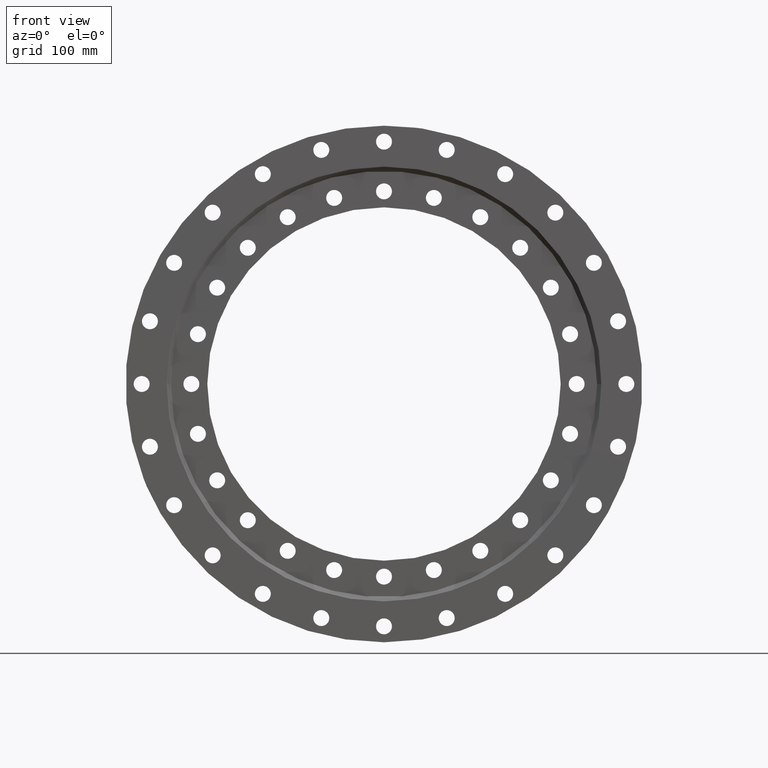
[diagram: clean part render]
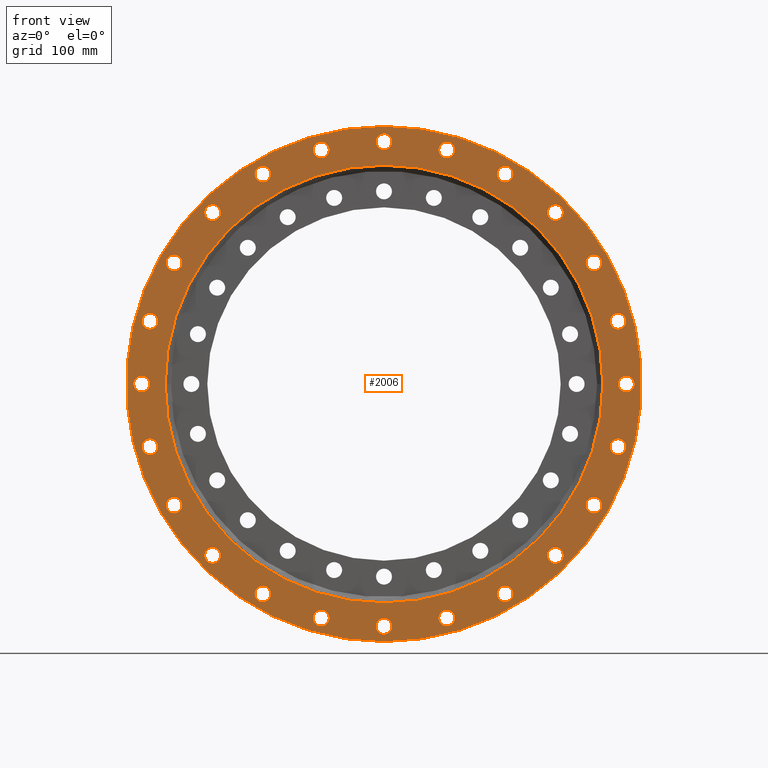
[diagram: same view with one face highlighted and labeled with its STEP entity id]
A machine part, front view. The second image highlights one B-rep face of the part: STEP entity #2006.
In plain terms, the highlighted planar face has unit normal (-0, 1, 0).
Its self-contained STEP definition (entity closure, byte-faithful):
#3 = AXIS2_PLACEMENT_3D ( 'NONE', #2013, #2030, #2047 ) ;
#12 = VERTEX_POINT ( 'NONE', #820 ) ;
#15 = CARTESIAN_POINT ( 'NONE',  ( -86.44556106424455800, -36.00000000000002800, -311.6192259805480900 ) ) ;
#21 = CIRCLE ( 'NONE', #1139, 355.0000000000000000 ) ;
#23 = EDGE_LOOP ( 'NONE', ( #2424, #4760 ) ) ;
#46 = ORIENTED_EDGE ( 'NONE', *, *, #116, .T. ) ;
#58 = CARTESIAN_POINT ( 'NONE',  ( 289.2524848640016400, -36.00000000000002800, -156.0000000000015600 ) ) ;
#84 = FACE_BOUND ( 'NONE', #23, .T. ) ;
#116 = EDGE_CURVE ( 'NONE', #5216, #2707, #4430, .T. ) ;
#119 = ORIENTED_EDGE ( 'NONE', *, *, #4009, .T. ) ;
#134 = CARTESIAN_POINT ( 'NONE',  ( 166.9999999999981800, -36.00000000000002800, -289.2524848640036300 ) ) ;
#144 = CIRCLE ( 'NONE', #1614, 11.00000000000000900 ) ;
#148 = AXIS2_PLACEMENT_3D ( 'NONE', #2527, #2550, #2562 ) ;
#150 = DIRECTION ( 'NONE',  ( 0.0000000000000000000, 1.000000000000000000, 0.0000000000000000000 ) ) ;
#156 = EDGE_CURVE ( 'NONE', #430, #5202, #5718, .T. ) ;
#167 = DIRECTION ( 'NONE',  ( 0.5000000000000066600, 0.0000000000000000000, -0.8660254037844347100 ) ) ;
#171 = AXIS2_PLACEMENT_3D ( 'NONE', #852, #3179, #3308 ) ;
#180 = VERTEX_POINT ( 'NONE', #2498 ) ;
#197 = VERTEX_POINT ( 'NONE', #5814 ) ;
#209 = DIRECTION ( 'NONE',  ( 0.8660254037844439300, 0.0000000000000000000, -0.4999999999999909500 ) ) ;
#219 = CARTESIAN_POINT ( 'NONE',  ( -289.2524848640004500, -36.00000000000002800, 167.0000000000035500 ) ) ;
#220 = CIRCLE ( 'NONE', #1414, 11.00000000000000900 ) ;
#237 = DIRECTION ( 'NONE',  ( 0.0000000000000000000, 1.000000000000000000, 0.0000000000000000000 ) ) ;
#238 = EDGE_LOOP ( 'NONE', ( #4052, #3748 ) ) ;
#252 = EDGE_CURVE ( 'NONE', #2319, #2987, #3437, .T. ) ;
#256 = DIRECTION ( 'NONE',  ( -0.8660254037844393700, 0.0000000000000000000, 0.4999999999999987800 ) ) ;
#262 = EDGE_CURVE ( 'NONE', #5720, #1990, #3318, .T. ) ;
#264 = CARTESIAN_POINT ( 'NONE',  ( 166.9999999999981800, -36.00000000000002800, -300.2524848640036300 ) ) ;
#298 = DIRECTION ( 'NONE',  ( 0.0000000000000000000, 1.000000000000000000, 0.0000000000000000000 ) ) ;
#331 = CARTESIAN_POINT ( 'NONE',  ( 86.44556106424232700, -36.00000000000002800, 311.6192259805487200 ) ) ;
#343 = CIRCLE ( 'NONE', #1247, 10.99999999999998000 ) ;
#360 = FACE_BOUND ( 'NONE', #518, .T. ) ;
#361 = CARTESIAN_POINT ( 'NONE',  ( 322.6192259805491700, -36.00000000000002800, 97.44556106424082000 ) ) ;
#375 = EDGE_LOOP ( 'NONE', ( #3237, #46 ) ) ;
#376 = FACE_BOUND ( 'NONE', #4136, .T. ) ;
#378 = DIRECTION ( 'NONE',  ( -0.2588190451025145200, 0.0000000000000000000, -0.9659258262890698700 ) ) ;
#383 = DIRECTION ( 'NONE',  ( 0.0000000000000000000, 1.000000000000000000, 0.0000000000000000000 ) ) ;
#400 = DIRECTION ( 'NONE',  ( 0.0000000000000000000, 0.0000000000000000000, 1.000000000000000000 ) ) ;
#404 = CARTESIAN_POINT ( 'NONE',  ( 86.44556106423968300, -36.00000000000002800, -322.6192259805494000 ) ) ;
#422 = AXIS2_PLACEMENT_3D ( 'NONE', #2269, #298, #1434 ) ;
#423 = VERTEX_POINT ( 'NONE', #3463 ) ;
#428 = CARTESIAN_POINT ( 'NONE',  ( -167.0000000000025300, -36.00000000000002800, -278.2524848640010800 ) ) ;
#429 = FACE_BOUND ( 'NONE', #5042, .T. ) ;
#430 = VERTEX_POINT ( 'NONE', #5399 ) ;
#433 = AXIS2_PLACEMENT_3D ( 'NONE', #616, #633, #656 ) ;
#456 = VERTEX_POINT ( 'NONE', #4078 ) ;
#459 = FACE_BOUND ( 'NONE', #1362, .T. ) ;
#472 = AXIS2_PLACEMENT_3D ( 'NONE', #219, #237, #256 ) ;
#484 = VERTEX_POINT ( 'NONE', #3235 ) ;
#489 = DIRECTION ( 'NONE',  ( 0.9659258262890655400, 0.0000000000000000000, 0.2588190451025311200 ) ) ;
#498 = EDGE_LOOP ( 'NONE', ( #2119, #2377 ) ) ;
#506 = AXIS2_PLACEMENT_3D ( 'NONE', #134, #150, #167 ) ;
#511 = ORIENTED_EDGE ( 'NONE', *, *, #262, .T. ) ;
#518 = EDGE_LOOP ( 'NONE', ( #3384, #3825 ) ) ;
#534 = FACE_BOUND ( 'NONE', #4867, .T. ) ;
#550 = VERTEX_POINT ( 'NONE', #3514 ) ;
#558 = VERTEX_POINT ( 'NONE', #2254 ) ;
#566 = CIRCLE ( 'NONE', #1294, 10.99999999999999300 ) ;
#572 = CARTESIAN_POINT ( 'NONE',  ( -236.1736649163090900, -36.00000000000002800, -247.1736649163046600 ) ) ;
#573 = DIRECTION ( 'NONE',  ( 0.0000000000000000000, 0.0000000000000000000, 1.000000000000000000 ) ) ;
#582 = DIRECTION ( 'NONE',  ( 0.0000000000000000000, 1.000000000000000000, 0.0000000000000000000 ) ) ;
#587 = EDGE_CURVE ( 'NONE', #5612, #1844, #5318, .T. ) ;
#614 = DIRECTION ( 'NONE',  ( 0.2588190451025276200, 0.0000000000000000000, -0.9659258262890664200 ) ) ;
#616 = CARTESIAN_POINT ( 'NONE',  ( -236.1736649163090900, -36.00000000000002800, -236.1736649163046900 ) ) ;
#630 = FACE_BOUND ( 'NONE', #5164, .T. ) ;
#633 = DIRECTION ( 'NONE',  ( 0.0000000000000000000, 1.000000000000000000, 0.0000000000000000000 ) ) ;
#649 = CARTESIAN_POINT ( 'NONE',  ( -289.2524848640004500, -36.00000000000002800, 167.0000000000035500 ) ) ;
#656 = DIRECTION ( 'NONE',  ( -0.7071067811865438000, 0.0000000000000000000, -0.7071067811865513500 ) ) ;
#662 = CIRCLE ( 'NONE', #2791, 11.00000000000001100 ) ;
#664 = DIRECTION ( 'NONE',  ( -0.0000000000000000000, 1.000000000000000000, -0.0000000000000000000 ) ) ;
#665 = VERTEX_POINT ( 'NONE', #2187 ) ;
#682 = CARTESIAN_POINT ( 'NONE',  ( 0.0000000000000000000, -36.00000000000002100, 0.0000000000000000000 ) ) ;
#686 = EDGE_LOOP ( 'NONE', ( #4099, #4105 ) ) ;
#774 = AXIS2_PLACEMENT_3D ( 'NONE', #2868, #2574, #2350 ) ;
#779 = EDGE_CURVE ( 'NONE', #4275, #1436, #4850, .T. ) ;
#785 = EDGE_CURVE ( 'NONE', #2707, #5216, #4763, .T. ) ;
#790 = VERTEX_POINT ( 'NONE', #1659 ) ;
#793 = DIRECTION ( 'NONE',  ( 6.982962677686258800E-015, 0.0000000000000000000, -1.000000000000000000 ) ) ;
#800 = CIRCLE ( 'NONE', #4824, 10.99999999999998000 ) ;
#815 = VERTEX_POINT ( 'NONE', #58 ) ;
#820 = CARTESIAN_POINT ( 'NONE',  ( -236.1736649163090900, -36.00000000000002800, -225.1736649163046900 ) ) ;
#826 = EDGE_LOOP ( 'NONE', ( #3183, #856 ) ) ;
#827 = DIRECTION ( 'NONE',  ( 0.0000000000000000000, 1.000000000000000000, 0.0000000000000000000 ) ) ;
#852 = CARTESIAN_POINT ( 'NONE',  ( -322.6192259805478100, -36.00000000000002800, 86.44556106424569500 ) ) ;
#856 = ORIENTED_EDGE ( 'NONE', *, *, #5449, .T. ) ;
#864 = CARTESIAN_POINT ( 'NONE',  ( -2.524916198387845900E-012, -36.00000000000002800, -334.0000000000000000 ) ) ;
#886 = CARTESIAN_POINT ( 'NONE',  ( -322.6192259805498000, -36.00000000000002800, -75.44556106423857500 ) ) ;
#897 = CIRCLE ( 'NONE', #3, 10.99999999999998000 ) ;
#901 = CARTESIAN_POINT ( 'NONE',  ( 289.2524848640030100, -36.00000000000002800, 166.9999999999991800 ) ) ;
#904 = AXIS2_PLACEMENT_3D ( 'NONE', #5311, #4855, #3256 ) ;
#921 = DIRECTION ( 'NONE',  ( 0.0000000000000000000, 1.000000000000000000, 0.0000000000000000000 ) ) ;
#952 = VERTEX_POINT ( 'NONE', #4466 ) ;
#970 = VERTEX_POINT ( 'NONE', #4947 ) ;
#971 = CIRCLE ( 'NONE', #4743, 11.00000000000001100 ) ;
#1054 = ORIENTED_EDGE ( 'NONE', *, *, #1971, .T. ) ;
#1055 = DIRECTION ( 'NONE',  ( 0.8660254037844326000, 0.0000000000000000000, 0.5000000000000105500 ) ) ;
#1062 = CIRCLE ( 'NONE', #2275, 11.00000000000000900 ) ;
#1069 = DIRECTION ( 'NONE',  ( 0.0000000000000000000, 1.000000000000000000, 0.0000000000000000000 ) ) ;
#1074 = ORIENTED_EDGE ( 'NONE', *, *, #2236, .T. ) ;
#1084 = EDGE_CURVE ( 'NONE', #3074, #5077, #4227, .T. ) ;
#1104 = AXIS2_PLACEMENT_3D ( 'NONE', #2285, #2313, #2341 ) ;
#1124 = VERTEX_POINT ( 'NONE', #2693 ) ;
#1139 = AXIS2_PLACEMENT_3D ( 'NONE', #1763, #1745, #1873 ) ;
#1140 = DIRECTION ( 'NONE',  ( 0.0000000000000000000, 1.000000000000000000, 0.0000000000000000000 ) ) ;
#1157 = CARTESIAN_POINT ( 'NONE',  ( 0.0000000000000000000, -36.00000000000002100, 0.0000000000000000000 ) ) ;
#1243 = EDGE_CURVE ( 'NONE', #2926, #5794, #3505, .T. ) ;
#1247 = AXIS2_PLACEMENT_3D ( 'NONE', #4643, #4624, #4611 ) ;
#1270 = CIRCLE ( 'NONE', #1879, 10.99999999999997200 ) ;
#1294 = AXIS2_PLACEMENT_3D ( 'NONE', #4915, #2683, #2667 ) ;
#1310 = CIRCLE ( 'NONE', #1762, 10.99999999999998600 ) ;
#1353 = DIRECTION ( 'NONE',  ( 0.7071067811865386900, 0.0000000000000000000, 0.7071067811865563400 ) ) ;
#1362 = EDGE_LOOP ( 'NONE', ( #3732, #3328 ) ) ;
#1376 = FACE_BOUND ( 'NONE', #4436, .T. ) ;
#1395 = CARTESIAN_POINT ( 'NONE',  ( 236.1736649163074400, -36.00000000000002800, 236.1736649163063100 ) ) ;
#1402 = CARTESIAN_POINT ( 'NONE',  ( -289.2524848640042600, -36.00000000000002800, -155.9999999999971600 ) ) ;
#1407 = CIRCLE ( 'NONE', #4268, 11.00000000000000500 ) ;
#1412 = DIRECTION ( 'NONE',  ( 0.0000000000000000000, 1.000000000000000000, 0.0000000000000000000 ) ) ;
#1414 = AXIS2_PLACEMENT_3D ( 'NONE', #5051, #4992, #4962 ) ;
#1424 = CARTESIAN_POINT ( 'NONE',  ( 167.0000000000005100, -36.00000000000002800, 278.2524848640022100 ) ) ;
#1433 = CARTESIAN_POINT ( 'NONE',  ( -236.1736649163038600, -36.00000000000002800, 247.1736649163099500 ) ) ;
#1434 = DIRECTION ( 'NONE',  ( -0.5000000000000007800, 0.0000000000000000000, 0.8660254037844382600 ) ) ;
#1436 = VERTEX_POINT ( 'NONE', #15 ) ;
#1468 = CARTESIAN_POINT ( 'NONE',  ( 236.1736649163074400, -36.00000000000002800, 225.1736649163063400 ) ) ;
#1473 = CIRCLE ( 'NONE', #1825, 10.99999999999997200 ) ;
#1508 = CIRCLE ( 'NONE', #2058, 10.99999999999998000 ) ;
#1515 = CIRCLE ( 'NONE', #5310, 11.00000000000000000 ) ;
#1520 = AXIS2_PLACEMENT_3D ( 'NONE', #3393, #3413, #3428 ) ;
#1539 = CARTESIAN_POINT ( 'NONE',  ( -2.524916198387845900E-012, -36.00000000000002800, -334.0000000000000000 ) ) ;
#1580 = CARTESIAN_POINT ( 'NONE',  ( 166.9999999999981800, -36.00000000000002800, -278.2524848640036300 ) ) ;
#1594 = FACE_OUTER_BOUND ( 'NONE', #1809, .T. ) ;
#1598 = DIRECTION ( 'NONE',  ( 0.0000000000000000000, 1.000000000000000000, 0.0000000000000000000 ) ) ;
#1599 = AXIS2_PLACEMENT_3D ( 'NONE', #3757, #3774, #3792 ) ;
#1606 = DIRECTION ( 'NONE',  ( 0.0000000000000000000, 0.0000000000000000000, 1.000000000000000000 ) ) ;
#1609 = DIRECTION ( 'NONE',  ( -0.2588190451025216800, 0.0000000000000000000, 0.9659258262890679800 ) ) ;
#1611 = EDGE_CURVE ( 'NONE', #484, #2503, #2773, .T. ) ;
#1614 = AXIS2_PLACEMENT_3D ( 'NONE', #3554, #3544, #3525 ) ;
#1617 = EDGE_LOOP ( 'NONE', ( #4557, #4030 ) ) ;
#1631 = CARTESIAN_POINT ( 'NONE',  ( -86.44556106424455800, -36.00000000000002800, -333.6192259805480900 ) ) ;
#1635 = DIRECTION ( 'NONE',  ( 0.0000000000000000000, 1.000000000000000000, 0.0000000000000000000 ) ) ;
#1659 = CARTESIAN_POINT ( 'NONE',  ( 289.2524848640030100, -36.00000000000002800, 155.9999999999992000 ) ) ;
#1665 = DIRECTION ( 'NONE',  ( 0.0000000000000000000, 1.000000000000000000, 0.0000000000000000000 ) ) ;
#1667 = CIRCLE ( 'NONE', #5353, 11.00000000000001100 ) ;
#1673 = EDGE_CURVE ( 'NONE', #5380, #952, #2095, .T. ) ;
#1680 = EDGE_CURVE ( 'NONE', #1844, #5612, #1891, .T. ) ;
#1685 = EDGE_LOOP ( 'NONE', ( #3439, #4724 ) ) ;
#1717 = CARTESIAN_POINT ( 'NONE',  ( -86.44556106424455800, -36.00000000000002800, -322.6192259805480900 ) ) ;
#1743 = EDGE_CURVE ( 'NONE', #1817, #5282, #1473, .T. ) ;
#1745 = DIRECTION ( 'NONE',  ( 0.0000000000000000000, -1.000000000000000000, 0.0000000000000000000 ) ) ;
#1749 = DIRECTION ( 'NONE',  ( -0.0000000000000000000, 1.000000000000000000, -0.0000000000000000000 ) ) ;
#1752 = EDGE_CURVE ( 'NONE', #4164, #815, #1310, .T. ) ;
#1762 = AXIS2_PLACEMENT_3D ( 'NONE', #1958, #1923, #209 ) ;
#1763 = CARTESIAN_POINT ( 'NONE',  ( 0.0000000000000000000, -36.00000000000002100, -1.337991223932613900E-015 ) ) ;
#1764 = DIRECTION ( 'NONE',  ( -0.7071067811865487900, 0.0000000000000000000, 0.7071067811865462400 ) ) ;
#1788 = CIRCLE ( 'NONE', #1104, 11.00000000000000000 ) ;
#1791 = DIRECTION ( 'NONE',  ( 0.4999999999999891200, 0.0000000000000000000, 0.8660254037844450400 ) ) ;
#1808 = VERTEX_POINT ( 'NONE', #1402 ) ;
#1809 = EDGE_LOOP ( 'NONE', ( #4293, #5221 ) ) ;
#1814 = CARTESIAN_POINT ( 'NONE',  ( 322.6192259805491700, -36.00000000000002800, 75.44556106424083500 ) ) ;
#1817 = VERTEX_POINT ( 'NONE', #1424 ) ;
#1825 = AXIS2_PLACEMENT_3D ( 'NONE', #2277, #2250, #2228 ) ;
#1831 = VERTEX_POINT ( 'NONE', #331 ) ;
#1844 = VERTEX_POINT ( 'NONE', #1468 ) ;
#1846 = EDGE_CURVE ( 'NONE', #5840, #1808, #144, .T. ) ;
#1859 = EDGE_CURVE ( 'NONE', #2689, #423, #21, .T. ) ;
#1872 = DIRECTION ( 'NONE',  ( -0.8660254037844393700, 0.0000000000000000000, 0.4999999999999987800 ) ) ;
#1873 = DIRECTION ( 'NONE',  ( 0.0000000000000000000, 0.0000000000000000000, 1.000000000000000000 ) ) ;
#1874 = VERTEX_POINT ( 'NONE', #1814 ) ;
#1879 = AXIS2_PLACEMENT_3D ( 'NONE', #4653, #4500, #1791 ) ;
#1891 = CIRCLE ( 'NONE', #1903, 10.99999999999998000 ) ;
#1903 = AXIS2_PLACEMENT_3D ( 'NONE', #3676, #4794, #2843 ) ;
#1923 = DIRECTION ( 'NONE',  ( 0.0000000000000000000, 1.000000000000000000, 0.0000000000000000000 ) ) ;
#1934 = DIRECTION ( 'NONE',  ( 1.000000000000000000, 0.0000000000000000000, 1.047444401652938900E-014 ) ) ;
#1958 = CARTESIAN_POINT ( 'NONE',  ( 289.2524848640016400, -36.00000000000002800, -167.0000000000015300 ) ) ;
#1959 = EDGE_CURVE ( 'NONE', #558, #3807, #343, .T. ) ;
#1963 = DIRECTION ( 'NONE',  ( 0.2588190451025276200, 0.0000000000000000000, -0.9659258262890664200 ) ) ;
#1969 = CARTESIAN_POINT ( 'NONE',  ( -322.6192259805478100, -36.00000000000002800, 86.44556106424569500 ) ) ;
#1971 = EDGE_CURVE ( 'NONE', #1874, #3365, #220, .T. ) ;
#1973 = EDGE_CURVE ( 'NONE', #1831, #1124, #566, .T. ) ;
#1986 = CARTESIAN_POINT ( 'NONE',  ( 86.44556106423968300, -36.00000000000002800, -322.6192259805494000 ) ) ;
#1990 = VERTEX_POINT ( 'NONE', #1580 ) ;
#1991 = DIRECTION ( 'NONE',  ( 0.0000000000000000000, 1.000000000000000000, 0.0000000000000000000 ) ) ;
#2006 = ADVANCED_FACE ( 'NONE', ( #84, #360, #429, #4426, #630, #5031, #5255, #1376, #5634, #5571, #2203, #4400, #4531, #4520, #4378, #4477, #3663, #376, #2214, #3519, #459, #2189, #534, #5527, #5686, #1594 ), #5594, .F. ) ;
#2013 = CARTESIAN_POINT ( 'NONE',  ( 236.1736649163055100, -36.00000000000002800, -236.1736649163082700 ) ) ;
#2024 = DIRECTION ( 'NONE',  ( -0.9659258262890689800, 0.0000000000000000000, 0.2588190451025181900 ) ) ;
#2028 = DIRECTION ( 'NONE',  ( 0.0000000000000000000, 1.000000000000000000, 0.0000000000000000000 ) ) ;
#2030 = DIRECTION ( 'NONE',  ( 0.0000000000000000000, 1.000000000000000000, 0.0000000000000000000 ) ) ;
#2047 = DIRECTION ( 'NONE',  ( 0.7071067811865537900, 0.0000000000000000000, -0.7071067811865412400 ) ) ;
#2050 = DIRECTION ( 'NONE',  ( 0.0000000000000000000, 1.000000000000000000, 0.0000000000000000000 ) ) ;
#2058 = AXIS2_PLACEMENT_3D ( 'NONE', #4674, #5640, #5577 ) ;
#2065 = CARTESIAN_POINT ( 'NONE',  ( -322.6192259805498000, -36.00000000000002800, -86.44556106423857500 ) ) ;
#2093 = AXIS2_PLACEMENT_3D ( 'NONE', #4161, #5448, #5346 ) ;
#2095 = CIRCLE ( 'NONE', #904, 11.00000000000001100 ) ;
#2112 = DIRECTION ( 'NONE',  ( -0.5000000000000007800, 0.0000000000000000000, 0.8660254037844382600 ) ) ;
#2119 = ORIENTED_EDGE ( 'NONE', *, *, #3863, .T. ) ;
#2121 = VERTEX_POINT ( 'NONE', #5390 ) ;
#2128 = CARTESIAN_POINT ( 'NONE',  ( 322.6192259805484400, -36.00000000000002800, -86.44556106424343500 ) ) ;
#2136 = DIRECTION ( 'NONE',  ( 0.0000000000000000000, 1.000000000000000000, 0.0000000000000000000 ) ) ;
#2139 = DIRECTION ( 'NONE',  ( -0.7071067811865487900, 0.0000000000000000000, 0.7071067811865462400 ) ) ;
#2158 = EDGE_CURVE ( 'NONE', #970, #197, #4588, .T. ) ;
#2172 = DIRECTION ( 'NONE',  ( 0.0000000000000000000, 1.000000000000000000, 0.0000000000000000000 ) ) ;
#2176 = EDGE_CURVE ( 'NONE', #3365, #1874, #1062, .T. ) ;
#2183 = CIRCLE ( 'NONE', #472, 10.99999999999998000 ) ;
#2187 = CARTESIAN_POINT ( 'NONE',  ( 236.1736649163055100, -36.00000000000002800, -247.1736649163082400 ) ) ;
#2189 = FACE_BOUND ( 'NONE', #5264, .T. ) ;
#2203 = FACE_BOUND ( 'NONE', #1617, .T. ) ;
#2210 = VERTEX_POINT ( 'NONE', #5323 ) ;
#2214 = FACE_BOUND ( 'NONE', #498, .T. ) ;
#2228 = DIRECTION ( 'NONE',  ( 0.4999999999999891200, 0.0000000000000000000, 0.8660254037844450400 ) ) ;
#2236 = EDGE_CURVE ( 'NONE', #952, #5380, #4334, .T. ) ;
#2250 = DIRECTION ( 'NONE',  ( 0.0000000000000000000, 1.000000000000000000, 0.0000000000000000000 ) ) ;
#2254 = CARTESIAN_POINT ( 'NONE',  ( -86.44556106423743800, -36.00000000000002800, 311.6192259805500300 ) ) ;
#2269 = CARTESIAN_POINT ( 'NONE',  ( -166.9999999999961300, -36.00000000000002800, 289.2524848640047700 ) ) ;
#2275 = AXIS2_PLACEMENT_3D ( 'NONE', #4090, #3903, #489 ) ;
#2277 = CARTESIAN_POINT ( 'NONE',  ( 167.0000000000005100, -36.00000000000002800, 289.2524848640022100 ) ) ;
#2285 = CARTESIAN_POINT ( 'NONE',  ( 289.2524848640030100, -36.00000000000002800, 166.9999999999991800 ) ) ;
#2301 = VERTEX_POINT ( 'NONE', #2821 ) ;
#2313 = DIRECTION ( 'NONE',  ( 0.0000000000000000000, 1.000000000000000000, 0.0000000000000000000 ) ) ;
#2315 = EDGE_LOOP ( 'NONE', ( #3020, #1074 ) ) ;
#2319 = VERTEX_POINT ( 'NONE', #2783 ) ;
#2324 = AXIS2_PLACEMENT_3D ( 'NONE', #4554, #4518, #4124 ) ;
#2327 = DIRECTION ( 'NONE',  ( 0.9659258262890708700, 0.0000000000000000000, -0.2588190451025110300 ) ) ;
#2335 = DIRECTION ( 'NONE',  ( 6.982962677686258800E-015, 0.0000000000000000000, -1.000000000000000000 ) ) ;
#2341 = DIRECTION ( 'NONE',  ( 0.8660254037844326000, 0.0000000000000000000, 0.5000000000000105500 ) ) ;
#2350 = DIRECTION ( 'NONE',  ( -1.000000000000000000, 0.0000000000000000000, -3.491481338843147200E-015 ) ) ;
#2358 = DIRECTION ( 'NONE',  ( 0.0000000000000000000, 1.000000000000000000, 0.0000000000000000000 ) ) ;
#2377 = ORIENTED_EDGE ( 'NONE', *, *, #5704, .T. ) ;
#2381 = AXIS2_PLACEMENT_3D ( 'NONE', #2406, #2358, #1934 ) ;
#2401 = ORIENTED_EDGE ( 'NONE', *, *, #252, .T. ) ;
#2406 = CARTESIAN_POINT ( 'NONE',  ( 334.0000000000000000, -36.00000000000002800, -1.358761431214239400E-012 ) ) ;
#2418 = ORIENTED_EDGE ( 'NONE', *, *, #2586, .T. ) ;
#2424 = ORIENTED_EDGE ( 'NONE', *, *, #1084, .T. ) ;
#2430 = ORIENTED_EDGE ( 'NONE', *, *, #3099, .T. ) ;
#2464 = CARTESIAN_POINT ( 'NONE',  ( -166.9999999999961300, -36.00000000000002800, 278.2524848640047700 ) ) ;
#2488 = EDGE_CURVE ( 'NONE', #550, #2121, #4046, .T. ) ;
#2498 = CARTESIAN_POINT ( 'NONE',  ( -2.523569086908783800E-012, -36.00000000000002800, -345.0000000000000600 ) ) ;
#2503 = VERTEX_POINT ( 'NONE', #2604 ) ;
#2516 = CARTESIAN_POINT ( 'NONE',  ( -236.1736649163038600, -36.00000000000002800, 236.1736649163099500 ) ) ;
#2525 = EDGE_CURVE ( 'NONE', #4957, #2941, #4988, .T. ) ;
#2527 = CARTESIAN_POINT ( 'NONE',  ( 0.0000000000000000000, -36.00000000000002100, -1.337991223932613900E-015 ) ) ;
#2545 = CARTESIAN_POINT ( 'NONE',  ( 289.2524848640016400, -36.00000000000002800, -178.0000000000015100 ) ) ;
#2546 = ORIENTED_EDGE ( 'NONE', *, *, #1680, .T. ) ;
#2550 = DIRECTION ( 'NONE',  ( 0.0000000000000000000, -1.000000000000000000, 0.0000000000000000000 ) ) ;
#2562 = DIRECTION ( 'NONE',  ( 0.0000000000000000000, 0.0000000000000000000, 1.000000000000000000 ) ) ;
#2574 = DIRECTION ( 'NONE',  ( 0.0000000000000000000, 1.000000000000000000, 0.0000000000000000000 ) ) ;
#2586 = EDGE_CURVE ( 'NONE', #4857, #12, #800, .T. ) ;
#2596 = ORIENTED_EDGE ( 'NONE', *, *, #587, .T. ) ;
#2600 = DIRECTION ( 'NONE',  ( 0.9659258262890708700, 0.0000000000000000000, -0.2588190451025110300 ) ) ;
#2604 = CARTESIAN_POINT ( 'NONE',  ( -334.0000000000000000, -36.00000000000002800, 11.00000000000368200 ) ) ;
#2624 = CARTESIAN_POINT ( 'NONE',  ( -166.9999999999961300, -36.00000000000002800, 289.2524848640047700 ) ) ;
#2632 = ORIENTED_EDGE ( 'NONE', *, *, #3334, .T. ) ;
#2647 = EDGE_CURVE ( 'NONE', #2503, #484, #971, .T. ) ;
#2656 = CARTESIAN_POINT ( 'NONE',  ( 334.0000000000000000, -36.00000000000002800, 10.99999999999863200 ) ) ;
#2667 = DIRECTION ( 'NONE',  ( 0.2588190451025075300, 0.0000000000000000000, 0.9659258262890719800 ) ) ;
#2683 = DIRECTION ( 'NONE',  ( 0.0000000000000000000, 1.000000000000000000, 0.0000000000000000000 ) ) ;
#2689 = VERTEX_POINT ( 'NONE', #3291 ) ;
#2693 = CARTESIAN_POINT ( 'NONE',  ( 86.44556106424232700, -36.00000000000002800, 333.6192259805487200 ) ) ;
#2707 = VERTEX_POINT ( 'NONE', #5041 ) ;
#2711 = CARTESIAN_POINT ( 'NONE',  ( 86.44556106423968300, -36.00000000000002800, -311.6192259805494000 ) ) ;
#2773 = CIRCLE ( 'NONE', #774, 11.00000000000001100 ) ;
#2783 = CARTESIAN_POINT ( 'NONE',  ( -167.0000000000025300, -36.00000000000002800, -300.2524848640010800 ) ) ;
#2784 = DIRECTION ( 'NONE',  ( 0.0000000000000000000, 1.000000000000000000, 0.0000000000000000000 ) ) ;
#2791 = AXIS2_PLACEMENT_3D ( 'NONE', #4848, #5263, #400 ) ;
#2802 = CARTESIAN_POINT ( 'NONE',  ( -322.6192259805498000, -36.00000000000002800, -97.44556106423857500 ) ) ;
#2815 = EDGE_CURVE ( 'NONE', #5794, #2926, #5668, .T. ) ;
#2821 = CARTESIAN_POINT ( 'NONE',  ( -2.524916198387845900E-012, -36.00000000000002800, -323.0000000000000000 ) ) ;
#2836 = EDGE_CURVE ( 'NONE', #4702, #4513, #1407, .T. ) ;
#2843 = DIRECTION ( 'NONE',  ( 0.7071067811865386900, 0.0000000000000000000, 0.7071067811865563400 ) ) ;
#2863 = CIRCLE ( 'NONE', #5475, 10.99999999999998000 ) ;
#2868 = CARTESIAN_POINT ( 'NONE',  ( -334.0000000000000000, -36.00000000000002800, 3.691070965561452500E-012 ) ) ;
#2926 = VERTEX_POINT ( 'NONE', #5412 ) ;
#2941 = VERTEX_POINT ( 'NONE', #2802 ) ;
#2979 = EDGE_CURVE ( 'NONE', #2301, #180, #5370, .T. ) ;
#2987 = VERTEX_POINT ( 'NONE', #428 ) ;
#2992 = CARTESIAN_POINT ( 'NONE',  ( -166.9999999999961300, -36.00000000000002800, 300.2524848640047700 ) ) ;
#2996 = CIRCLE ( 'NONE', #506, 10.99999999999997300 ) ;
#2999 = ORIENTED_EDGE ( 'NONE', *, *, #1973, .T. ) ;
#3001 = AXIS2_PLACEMENT_3D ( 'NONE', #649, #921, #1872 ) ;
#3020 = ORIENTED_EDGE ( 'NONE', *, *, #1673, .T. ) ;
#3027 = CARTESIAN_POINT ( 'NONE',  ( 322.6192259805484400, -36.00000000000002800, -86.44556106424343500 ) ) ;
#3028 = CARTESIAN_POINT ( 'NONE',  ( -86.44556106423743800, -36.00000000000002800, 333.6192259805500300 ) ) ;
#3056 = EDGE_CURVE ( 'NONE', #5077, #3074, #4882, .T. ) ;
#3074 = VERTEX_POINT ( 'NONE', #2992 ) ;
#3092 = ORIENTED_EDGE ( 'NONE', *, *, #3105, .T. ) ;
#3099 = EDGE_CURVE ( 'NONE', #2987, #2319, #4465, .T. ) ;
#3101 = DIRECTION ( 'NONE',  ( -0.9659258262890670900, 0.0000000000000000000, -0.2588190451025252400 ) ) ;
#3105 = EDGE_CURVE ( 'NONE', #3807, #558, #4374, .T. ) ;
#3151 = CIRCLE ( 'NONE', #5483, 10.99999999999999800 ) ;
#3179 = DIRECTION ( 'NONE',  ( 0.0000000000000000000, 1.000000000000000000, 0.0000000000000000000 ) ) ;
#3183 = ORIENTED_EDGE ( 'NONE', *, *, #2525, .T. ) ;
#3201 = ORIENTED_EDGE ( 'NONE', *, *, #4051, .T. ) ;
#3235 = CARTESIAN_POINT ( 'NONE',  ( -334.0000000000000000, -36.00000000000002800, -10.99999999999630000 ) ) ;
#3237 = ORIENTED_EDGE ( 'NONE', *, *, #785, .T. ) ;
#3255 = EDGE_CURVE ( 'NONE', #1436, #4275, #3852, .T. ) ;
#3256 = DIRECTION ( 'NONE',  ( 1.000000000000000000, 0.0000000000000000000, 1.047444401652938900E-014 ) ) ;
#3259 = CARTESIAN_POINT ( 'NONE',  ( 236.1736649163074400, -36.00000000000002800, 247.1736649163063100 ) ) ;
#3265 = CIRCLE ( 'NONE', #5433, 11.00000000000000500 ) ;
#3278 = EDGE_CURVE ( 'NONE', #815, #4164, #3773, .T. ) ;
#3291 = CARTESIAN_POINT ( 'NONE',  ( 0.0000000000000000000, -36.00000000000002100, 355.0000000000000000 ) ) ;
#3308 = DIRECTION ( 'NONE',  ( -0.9659258262890689800, 0.0000000000000000000, 0.2588190451025181900 ) ) ;
#3317 = EDGE_CURVE ( 'NONE', #5202, #430, #3151, .T. ) ;
#3318 = CIRCLE ( 'NONE', #4619, 10.99999999999997300 ) ;
#3325 = ORIENTED_EDGE ( 'NONE', *, *, #779, .T. ) ;
#3326 = EDGE_CURVE ( 'NONE', #4028, #5018, #2863, .T. ) ;
#3328 = ORIENTED_EDGE ( 'NONE', *, *, #1743, .T. ) ;
#3334 = EDGE_CURVE ( 'NONE', #4513, #4702, #3265, .T. ) ;
#3340 = ORIENTED_EDGE ( 'NONE', *, *, #2815, .T. ) ;
#3365 = VERTEX_POINT ( 'NONE', #361 ) ;
#3376 = CARTESIAN_POINT ( 'NONE',  ( -236.1736649163038600, -36.00000000000002800, 225.1736649163099700 ) ) ;
#3384 = ORIENTED_EDGE ( 'NONE', *, *, #5442, .T. ) ;
#3393 = CARTESIAN_POINT ( 'NONE',  ( -289.2524848640042600, -36.00000000000002800, -166.9999999999971600 ) ) ;
#3396 = ORIENTED_EDGE ( 'NONE', *, *, #3673, .T. ) ;
#3413 = DIRECTION ( 'NONE',  ( 0.0000000000000000000, 1.000000000000000000, 0.0000000000000000000 ) ) ;
#3428 = DIRECTION ( 'NONE',  ( -0.8660254037844371500, 0.0000000000000000000, -0.5000000000000025500 ) ) ;
#3430 = CARTESIAN_POINT ( 'NONE',  ( -86.44556106423743800, -36.00000000000002800, 322.6192259805500300 ) ) ;
#3437 = CIRCLE ( 'NONE', #4589, 11.00000000000001400 ) ;
#3439 = ORIENTED_EDGE ( 'NONE', *, *, #4570, .T. ) ;
#3463 = CARTESIAN_POINT ( 'NONE',  ( 4.347496136973103400E-014, -36.00000000000002100, -355.0000000000000000 ) ) ;
#3505 = CIRCLE ( 'NONE', #171, 10.99999999999997000 ) ;
#3514 = CARTESIAN_POINT ( 'NONE',  ( -289.2524848640004500, -36.00000000000002800, 178.0000000000035500 ) ) ;
#3519 = FACE_BOUND ( 'NONE', #5444, .T. ) ;
#3522 = AXIS2_PLACEMENT_3D ( 'NONE', #3430, #1598, #1609 ) ;
#3525 = DIRECTION ( 'NONE',  ( -0.8660254037844371500, 0.0000000000000000000, -0.5000000000000025500 ) ) ;
#3544 = DIRECTION ( 'NONE',  ( 0.0000000000000000000, 1.000000000000000000, 0.0000000000000000000 ) ) ;
#3553 = AXIS2_PLACEMENT_3D ( 'NONE', #5793, #5828, #5817 ) ;
#3554 = CARTESIAN_POINT ( 'NONE',  ( -289.2524848640042600, -36.00000000000002800, -166.9999999999971600 ) ) ;
#3602 = ORIENTED_EDGE ( 'NONE', *, *, #2836, .T. ) ;
#3656 = EDGE_CURVE ( 'NONE', #1990, #5720, #2996, .T. ) ;
#3663 = FACE_BOUND ( 'NONE', #2315, .T. ) ;
#3666 = AXIS2_PLACEMENT_3D ( 'NONE', #2624, #2028, #2112 ) ;
#3673 = EDGE_CURVE ( 'NONE', #2121, #550, #2183, .T. ) ;
#3676 = CARTESIAN_POINT ( 'NONE',  ( 236.1736649163074400, -36.00000000000002800, 236.1736649163063100 ) ) ;
#3692 = EDGE_CURVE ( 'NONE', #12, #4857, #4179, .T. ) ;
#3731 = ORIENTED_EDGE ( 'NONE', *, *, #2176, .T. ) ;
#3732 = ORIENTED_EDGE ( 'NONE', *, *, #4422, .T. ) ;
#3748 = ORIENTED_EDGE ( 'NONE', *, *, #156, .T. ) ;
#3754 = DIRECTION ( 'NONE',  ( 0.0000000000000000000, 1.000000000000000000, 0.0000000000000000000 ) ) ;
#3757 = CARTESIAN_POINT ( 'NONE',  ( 86.44556106424232700, -36.00000000000002800, 322.6192259805487200 ) ) ;
#3758 = EDGE_CURVE ( 'NONE', #2210, #665, #897, .T. ) ;
#3772 = DIRECTION ( 'NONE',  ( -0.7071067811865438000, 0.0000000000000000000, -0.7071067811865513500 ) ) ;
#3773 = CIRCLE ( 'NONE', #5301, 10.99999999999998600 ) ;
#3774 = DIRECTION ( 'NONE',  ( 0.0000000000000000000, 1.000000000000000000, 0.0000000000000000000 ) ) ;
#3780 = EDGE_CURVE ( 'NONE', #423, #2689, #4723, .T. ) ;
#3792 = DIRECTION ( 'NONE',  ( 0.2588190451025075300, 0.0000000000000000000, 0.9659258262890719800 ) ) ;
#3807 = VERTEX_POINT ( 'NONE', #3028 ) ;
#3825 = ORIENTED_EDGE ( 'NONE', *, *, #3326, .T. ) ;
#3840 = CARTESIAN_POINT ( 'NONE',  ( -322.6192259805498000, -36.00000000000002800, -86.44556106423857500 ) ) ;
#3852 = CIRCLE ( 'NONE', #5256, 11.00000000000001600 ) ;
#3862 = CARTESIAN_POINT ( 'NONE',  ( -236.1736649163038600, -36.00000000000002800, 236.1736649163099500 ) ) ;
#3863 = EDGE_CURVE ( 'NONE', #456, #790, #1788, .T. ) ;
#3865 = CARTESIAN_POINT ( 'NONE',  ( -236.1736649163090900, -36.00000000000002800, -236.1736649163046900 ) ) ;
#3891 = DIRECTION ( 'NONE',  ( -0.9659258262890670900, 0.0000000000000000000, -0.2588190451025252400 ) ) ;
#3903 = DIRECTION ( 'NONE',  ( 0.0000000000000000000, 1.000000000000000000, 0.0000000000000000000 ) ) ;
#3905 = ORIENTED_EDGE ( 'NONE', *, *, #1959, .T. ) ;
#3908 = AXIS2_PLACEMENT_3D ( 'NONE', #1539, #2784, #2335 ) ;
#3993 = ORIENTED_EDGE ( 'NONE', *, *, #4432, .T. ) ;
#4009 = EDGE_CURVE ( 'NONE', #1808, #5840, #4525, .T. ) ;
#4027 = DIRECTION ( 'NONE',  ( 0.5000000000000066600, 0.0000000000000000000, -0.8660254037844347100 ) ) ;
#4028 = VERTEX_POINT ( 'NONE', #3376 ) ;
#4030 = ORIENTED_EDGE ( 'NONE', *, *, #5702, .T. ) ;
#4046 = CIRCLE ( 'NONE', #3001, 10.99999999999998000 ) ;
#4050 = DIRECTION ( 'NONE',  ( 0.0000000000000000000, 1.000000000000000000, 0.0000000000000000000 ) ) ;
#4051 = EDGE_CURVE ( 'NONE', #1124, #1831, #4444, .T. ) ;
#4052 = ORIENTED_EDGE ( 'NONE', *, *, #3317, .T. ) ;
#4056 = CARTESIAN_POINT ( 'NONE',  ( 3.693381665378523200E-014, -36.00000000000002100, -301.5874999999999800 ) ) ;
#4074 = CARTESIAN_POINT ( 'NONE',  ( 166.9999999999981800, -36.00000000000002800, -289.2524848640036300 ) ) ;
#4078 = CARTESIAN_POINT ( 'NONE',  ( 289.2524848640030100, -36.00000000000002800, 177.9999999999991500 ) ) ;
#4090 = CARTESIAN_POINT ( 'NONE',  ( 322.6192259805491700, -36.00000000000002800, 86.44556106424082000 ) ) ;
#4099 = ORIENTED_EDGE ( 'NONE', *, *, #3278, .T. ) ;
#4105 = ORIENTED_EDGE ( 'NONE', *, *, #1752, .T. ) ;
#4111 = ORIENTED_EDGE ( 'NONE', *, *, #1243, .T. ) ;
#4124 = DIRECTION ( 'NONE',  ( 0.0000000000000000000, 0.0000000000000000000, 1.000000000000000000 ) ) ;
#4129 = ORIENTED_EDGE ( 'NONE', *, *, #2647, .T. ) ;
#4132 = ORIENTED_EDGE ( 'NONE', *, *, #2488, .T. ) ;
#4136 = EDGE_LOOP ( 'NONE', ( #3731, #1054 ) ) ;
#4161 = CARTESIAN_POINT ( 'NONE',  ( 0.0000000000000000000, -36.00000000000002100, 301.5874999999999800 ) ) ;
#4164 = VERTEX_POINT ( 'NONE', #2545 ) ;
#4179 = CIRCLE ( 'NONE', #433, 10.99999999999998000 ) ;
#4208 = EDGE_LOOP ( 'NONE', ( #119, #4419 ) ) ;
#4227 = CIRCLE ( 'NONE', #422, 10.99999999999999500 ) ;
#4231 = AXIS2_PLACEMENT_3D ( 'NONE', #1969, #1991, #2024 ) ;
#4251 = AXIS2_PLACEMENT_3D ( 'NONE', #682, #664, #573 ) ;
#4255 = DIRECTION ( 'NONE',  ( 0.0000000000000000000, 1.000000000000000000, 0.0000000000000000000 ) ) ;
#4267 = DIRECTION ( 'NONE',  ( -0.4999999999999947300, 0.0000000000000000000, -0.8660254037844417100 ) ) ;
#4268 = AXIS2_PLACEMENT_3D ( 'NONE', #2128, #2136, #2327 ) ;
#4275 = VERTEX_POINT ( 'NONE', #1631 ) ;
#4286 = DIRECTION ( 'NONE',  ( 0.0000000000000000000, 1.000000000000000000, 0.0000000000000000000 ) ) ;
#4293 = ORIENTED_EDGE ( 'NONE', *, *, #1859, .T. ) ;
#4320 = EDGE_LOOP ( 'NONE', ( #4982, #3993 ) ) ;
#4334 = CIRCLE ( 'NONE', #2381, 11.00000000000001100 ) ;
#4374 = CIRCLE ( 'NONE', #3522, 10.99999999999998000 ) ;
#4378 = FACE_BOUND ( 'NONE', #686, .T. ) ;
#4381 = EDGE_LOOP ( 'NONE', ( #3602, #2632 ) ) ;
#4400 = FACE_BOUND ( 'NONE', #238, .T. ) ;
#4412 = EDGE_LOOP ( 'NONE', ( #4655, #511 ) ) ;
#4413 = CARTESIAN_POINT ( 'NONE',  ( 167.0000000000005100, -36.00000000000002800, 300.2524848640022700 ) ) ;
#4419 = ORIENTED_EDGE ( 'NONE', *, *, #1846, .T. ) ;
#4422 = EDGE_CURVE ( 'NONE', #5282, #1817, #1270, .T. ) ;
#4423 = CARTESIAN_POINT ( 'NONE',  ( -167.0000000000025300, -36.00000000000002800, -289.2524848640010800 ) ) ;
#4426 = FACE_BOUND ( 'NONE', #4808, .T. ) ;
#4430 = CIRCLE ( 'NONE', #4251, 301.5874999999999800 ) ;
#4432 = EDGE_CURVE ( 'NONE', #665, #2210, #1508, .T. ) ;
#4436 = EDGE_LOOP ( 'NONE', ( #4756, #2418 ) ) ;
#4444 = CIRCLE ( 'NONE', #1599, 10.99999999999999300 ) ;
#4445 = AXIS2_PLACEMENT_3D ( 'NONE', #1986, #1069, #1963 ) ;
#4465 = CIRCLE ( 'NONE', #3553, 11.00000000000001400 ) ;
#4466 = CARTESIAN_POINT ( 'NONE',  ( 334.0000000000000000, -36.00000000000002800, -11.00000000000134800 ) ) ;
#4477 = FACE_BOUND ( 'NONE', #4381, .T. ) ;
#4500 = DIRECTION ( 'NONE',  ( 0.0000000000000000000, 1.000000000000000000, 0.0000000000000000000 ) ) ;
#4513 = VERTEX_POINT ( 'NONE', #4871 ) ;
#4518 = DIRECTION ( 'NONE',  ( 0.0000000000000000000, 1.000000000000000000, 0.0000000000000000000 ) ) ;
#4520 = FACE_BOUND ( 'NONE', #4320, .T. ) ;
#4525 = CIRCLE ( 'NONE', #1520, 11.00000000000000900 ) ;
#4531 = FACE_BOUND ( 'NONE', #4412, .T. ) ;
#4554 = CARTESIAN_POINT ( 'NONE',  ( 4.857225732735059100E-012, -36.00000000000002800, 334.0000000000000000 ) ) ;
#4557 = ORIENTED_EDGE ( 'NONE', *, *, #2979, .T. ) ;
#4565 = AXIS2_PLACEMENT_3D ( 'NONE', #2065, #2050, #3101 ) ;
#4570 = EDGE_CURVE ( 'NONE', #197, #970, #662, .T. ) ;
#4588 = CIRCLE ( 'NONE', #2324, 11.00000000000001100 ) ;
#4589 = AXIS2_PLACEMENT_3D ( 'NONE', #4423, #4286, #4267 ) ;
#4611 = DIRECTION ( 'NONE',  ( -0.2588190451025216800, 0.0000000000000000000, 0.9659258262890679800 ) ) ;
#4619 = AXIS2_PLACEMENT_3D ( 'NONE', #4074, #4050, #4027 ) ;
#4624 = DIRECTION ( 'NONE',  ( 0.0000000000000000000, 1.000000000000000000, 0.0000000000000000000 ) ) ;
#4637 = AXIS2_PLACEMENT_3D ( 'NONE', #2516, #1140, #2139 ) ;
#4643 = CARTESIAN_POINT ( 'NONE',  ( -86.44556106423743800, -36.00000000000002800, 322.6192259805500300 ) ) ;
#4653 = CARTESIAN_POINT ( 'NONE',  ( 167.0000000000005100, -36.00000000000002800, 289.2524848640022100 ) ) ;
#4655 = ORIENTED_EDGE ( 'NONE', *, *, #3656, .T. ) ;
#4671 = ORIENTED_EDGE ( 'NONE', *, *, #1611, .T. ) ;
#4674 = CARTESIAN_POINT ( 'NONE',  ( 236.1736649163055100, -36.00000000000002800, -236.1736649163082700 ) ) ;
#4702 = VERTEX_POINT ( 'NONE', #4795 ) ;
#4723 = CIRCLE ( 'NONE', #148, 355.0000000000000000 ) ;
#4724 = ORIENTED_EDGE ( 'NONE', *, *, #2158, .T. ) ;
#4743 = AXIS2_PLACEMENT_3D ( 'NONE', #4936, #4753, #5166 ) ;
#4753 = DIRECTION ( 'NONE',  ( 0.0000000000000000000, 1.000000000000000000, 0.0000000000000000000 ) ) ;
#4756 = ORIENTED_EDGE ( 'NONE', *, *, #3692, .T. ) ;
#4760 = ORIENTED_EDGE ( 'NONE', *, *, #3056, .T. ) ;
#4763 = CIRCLE ( 'NONE', #5336, 301.5874999999999800 ) ;
#4794 = DIRECTION ( 'NONE',  ( 0.0000000000000000000, 1.000000000000000000, 0.0000000000000000000 ) ) ;
#4795 = CARTESIAN_POINT ( 'NONE',  ( 322.6192259805484400, -36.00000000000002800, -75.44556106424343500 ) ) ;
#4808 = EDGE_LOOP ( 'NONE', ( #3340, #4111 ) ) ;
#4824 = AXIS2_PLACEMENT_3D ( 'NONE', #3865, #3754, #3772 ) ;
#4848 = CARTESIAN_POINT ( 'NONE',  ( 4.857225732735059100E-012, -36.00000000000002800, 334.0000000000000000 ) ) ;
#4850 = CIRCLE ( 'NONE', #5214, 11.00000000000001600 ) ;
#4855 = DIRECTION ( 'NONE',  ( 0.0000000000000000000, 1.000000000000000000, 0.0000000000000000000 ) ) ;
#4857 = VERTEX_POINT ( 'NONE', #572 ) ;
#4867 = EDGE_LOOP ( 'NONE', ( #3092, #3905 ) ) ;
#4871 = CARTESIAN_POINT ( 'NONE',  ( 322.6192259805484400, -36.00000000000002800, -97.44556106424343500 ) ) ;
#4882 = CIRCLE ( 'NONE', #3666, 10.99999999999999500 ) ;
#4895 = EDGE_LOOP ( 'NONE', ( #2430, #2401 ) ) ;
#4915 = CARTESIAN_POINT ( 'NONE',  ( 86.44556106424232700, -36.00000000000002800, 322.6192259805487200 ) ) ;
#4936 = CARTESIAN_POINT ( 'NONE',  ( -334.0000000000000000, -36.00000000000002800, 3.691070965561452500E-012 ) ) ;
#4947 = CARTESIAN_POINT ( 'NONE',  ( 4.858572844214121200E-012, -36.00000000000002800, 323.0000000000000000 ) ) ;
#4952 = EDGE_LOOP ( 'NONE', ( #5322, #3325 ) ) ;
#4957 = VERTEX_POINT ( 'NONE', #886 ) ;
#4962 = DIRECTION ( 'NONE',  ( 0.9659258262890655400, 0.0000000000000000000, 0.2588190451025311200 ) ) ;
#4982 = ORIENTED_EDGE ( 'NONE', *, *, #3758, .T. ) ;
#4988 = CIRCLE ( 'NONE', #5173, 10.99999999999999100 ) ;
#4992 = DIRECTION ( 'NONE',  ( 0.0000000000000000000, 1.000000000000000000, 0.0000000000000000000 ) ) ;
#5018 = VERTEX_POINT ( 'NONE', #1433 ) ;
#5031 = FACE_BOUND ( 'NONE', #826, .T. ) ;
#5032 = AXIS2_PLACEMENT_3D ( 'NONE', #1395, #1412, #1353 ) ;
#5041 = CARTESIAN_POINT ( 'NONE',  ( 0.0000000000000000000, -36.00000000000002100, 301.5874999999999800 ) ) ;
#5042 = EDGE_LOOP ( 'NONE', ( #4132, #3396 ) ) ;
#5051 = CARTESIAN_POINT ( 'NONE',  ( 322.6192259805491700, -36.00000000000002800, 86.44556106424082000 ) ) ;
#5077 = VERTEX_POINT ( 'NONE', #2464 ) ;
#5097 = CARTESIAN_POINT ( 'NONE',  ( -86.44556106424455800, -36.00000000000002800, -322.6192259805480900 ) ) ;
#5114 = DIRECTION ( 'NONE',  ( 0.0000000000000000000, 1.000000000000000000, 0.0000000000000000000 ) ) ;
#5156 = DIRECTION ( 'NONE',  ( -0.2588190451025145200, 0.0000000000000000000, -0.9659258262890698700 ) ) ;
#5164 = EDGE_LOOP ( 'NONE', ( #4129, #4671 ) ) ;
#5166 = DIRECTION ( 'NONE',  ( -1.000000000000000000, 0.0000000000000000000, -3.491481338843147200E-015 ) ) ;
#5173 = AXIS2_PLACEMENT_3D ( 'NONE', #3840, #4255, #3891 ) ;
#5202 = VERTEX_POINT ( 'NONE', #2711 ) ;
#5214 = AXIS2_PLACEMENT_3D ( 'NONE', #1717, #383, #378 ) ;
#5216 = VERTEX_POINT ( 'NONE', #4056 ) ;
#5221 = ORIENTED_EDGE ( 'NONE', *, *, #3780, .T. ) ;
#5255 = FACE_BOUND ( 'NONE', #4208, .T. ) ;
#5256 = AXIS2_PLACEMENT_3D ( 'NONE', #5097, #5114, #5156 ) ;
#5263 = DIRECTION ( 'NONE',  ( 0.0000000000000000000, 1.000000000000000000, 0.0000000000000000000 ) ) ;
#5264 = EDGE_LOOP ( 'NONE', ( #3201, #2999 ) ) ;
#5282 = VERTEX_POINT ( 'NONE', #4413 ) ;
#5301 = AXIS2_PLACEMENT_3D ( 'NONE', #5669, #5692, #5753 ) ;
#5310 = AXIS2_PLACEMENT_3D ( 'NONE', #901, #1635, #1055 ) ;
#5311 = CARTESIAN_POINT ( 'NONE',  ( 334.0000000000000000, -36.00000000000002800, -1.358761431214239400E-012 ) ) ;
#5318 = CIRCLE ( 'NONE', #5032, 10.99999999999998000 ) ;
#5322 = ORIENTED_EDGE ( 'NONE', *, *, #3255, .T. ) ;
#5323 = CARTESIAN_POINT ( 'NONE',  ( 236.1736649163055100, -36.00000000000002800, -225.1736649163082700 ) ) ;
#5336 = AXIS2_PLACEMENT_3D ( 'NONE', #1157, #1749, #1606 ) ;
#5346 = DIRECTION ( 'NONE',  ( 0.0000000000000000000, 0.0000000000000000000, 1.000000000000000000 ) ) ;
#5353 = AXIS2_PLACEMENT_3D ( 'NONE', #864, #827, #793 ) ;
#5370 = CIRCLE ( 'NONE', #3908, 11.00000000000001100 ) ;
#5380 = VERTEX_POINT ( 'NONE', #2656 ) ;
#5390 = CARTESIAN_POINT ( 'NONE',  ( -289.2524848640004500, -36.00000000000002800, 156.0000000000035800 ) ) ;
#5399 = CARTESIAN_POINT ( 'NONE',  ( 86.44556106423968300, -36.00000000000002800, -333.6192259805494600 ) ) ;
#5412 = CARTESIAN_POINT ( 'NONE',  ( -322.6192259805478100, -36.00000000000002800, 75.44556106424569500 ) ) ;
#5433 = AXIS2_PLACEMENT_3D ( 'NONE', #3027, #1665, #2600 ) ;
#5442 = EDGE_CURVE ( 'NONE', #5018, #4028, #5681, .T. ) ;
#5444 = EDGE_LOOP ( 'NONE', ( #2596, #2546 ) ) ;
#5448 = DIRECTION ( 'NONE',  ( -0.0000000000000000000, 1.000000000000000000, 0.0000000000000000000 ) ) ;
#5449 = EDGE_CURVE ( 'NONE', #2941, #4957, #5610, .T. ) ;
#5475 = AXIS2_PLACEMENT_3D ( 'NONE', #3862, #2172, #1764 ) ;
#5483 = AXIS2_PLACEMENT_3D ( 'NONE', #404, #582, #614 ) ;
#5527 = FACE_BOUND ( 'NONE', #1685, .T. ) ;
#5553 = CARTESIAN_POINT ( 'NONE',  ( -322.6192259805478100, -36.00000000000002800, 97.44556106424569500 ) ) ;
#5571 = FACE_BOUND ( 'NONE', #4952, .T. ) ;
#5577 = DIRECTION ( 'NONE',  ( 0.7071067811865537900, 0.0000000000000000000, -0.7071067811865412400 ) ) ;
#5594 = PLANE ( 'NONE',  #2093 ) ;
#5610 = CIRCLE ( 'NONE', #4565, 10.99999999999999100 ) ;
#5612 = VERTEX_POINT ( 'NONE', #3259 ) ;
#5634 = FACE_BOUND ( 'NONE', #4895, .T. ) ;
#5640 = DIRECTION ( 'NONE',  ( 0.0000000000000000000, 1.000000000000000000, 0.0000000000000000000 ) ) ;
#5668 = CIRCLE ( 'NONE', #4231, 10.99999999999997000 ) ;
#5669 = CARTESIAN_POINT ( 'NONE',  ( 289.2524848640016400, -36.00000000000002800, -167.0000000000015300 ) ) ;
#5681 = CIRCLE ( 'NONE', #4637, 10.99999999999998000 ) ;
#5686 = FACE_BOUND ( 'NONE', #375, .T. ) ;
#5692 = DIRECTION ( 'NONE',  ( 0.0000000000000000000, 1.000000000000000000, 0.0000000000000000000 ) ) ;
#5702 = EDGE_CURVE ( 'NONE', #180, #2301, #1667, .T. ) ;
#5704 = EDGE_CURVE ( 'NONE', #790, #456, #1515, .T. ) ;
#5718 = CIRCLE ( 'NONE', #4445, 10.99999999999999800 ) ;
#5720 = VERTEX_POINT ( 'NONE', #264 ) ;
#5753 = DIRECTION ( 'NONE',  ( 0.8660254037844439300, 0.0000000000000000000, -0.4999999999999909500 ) ) ;
#5777 = CARTESIAN_POINT ( 'NONE',  ( -289.2524848640042600, -36.00000000000002800, -177.9999999999971300 ) ) ;
#5793 = CARTESIAN_POINT ( 'NONE',  ( -167.0000000000025300, -36.00000000000002800, -289.2524848640010800 ) ) ;
#5794 = VERTEX_POINT ( 'NONE', #5553 ) ;
#5814 = CARTESIAN_POINT ( 'NONE',  ( 4.857225732735059100E-012, -36.00000000000002800, 345.0000000000000600 ) ) ;
#5817 = DIRECTION ( 'NONE',  ( -0.4999999999999947300, 0.0000000000000000000, -0.8660254037844417100 ) ) ;
#5828 = DIRECTION ( 'NONE',  ( 0.0000000000000000000, 1.000000000000000000, 0.0000000000000000000 ) ) ;
#5840 = VERTEX_POINT ( 'NONE', #5777 ) ;